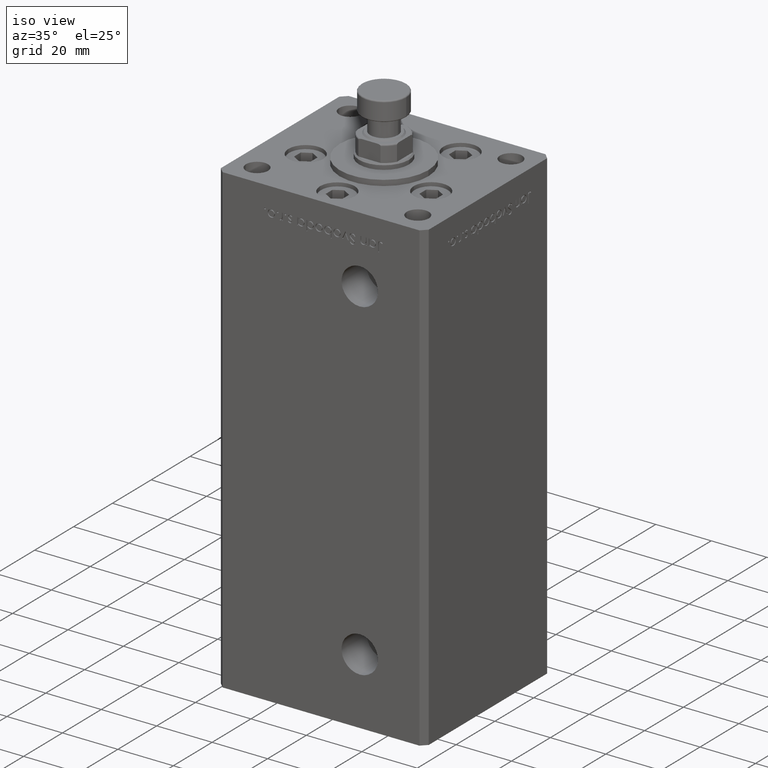
[diagram: clean part render]
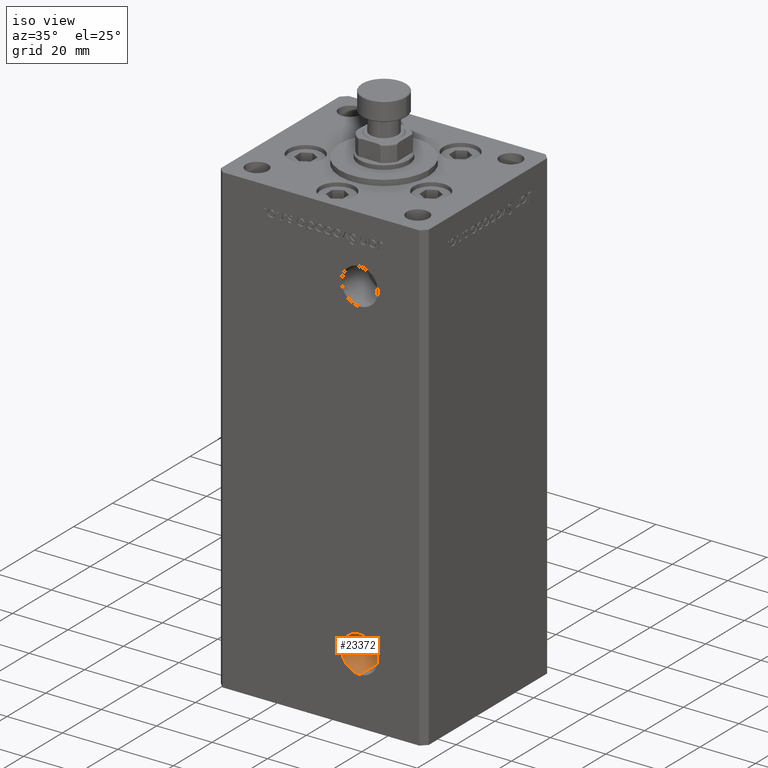
[diagram: same view with one face highlighted and labeled with its STEP entity id]
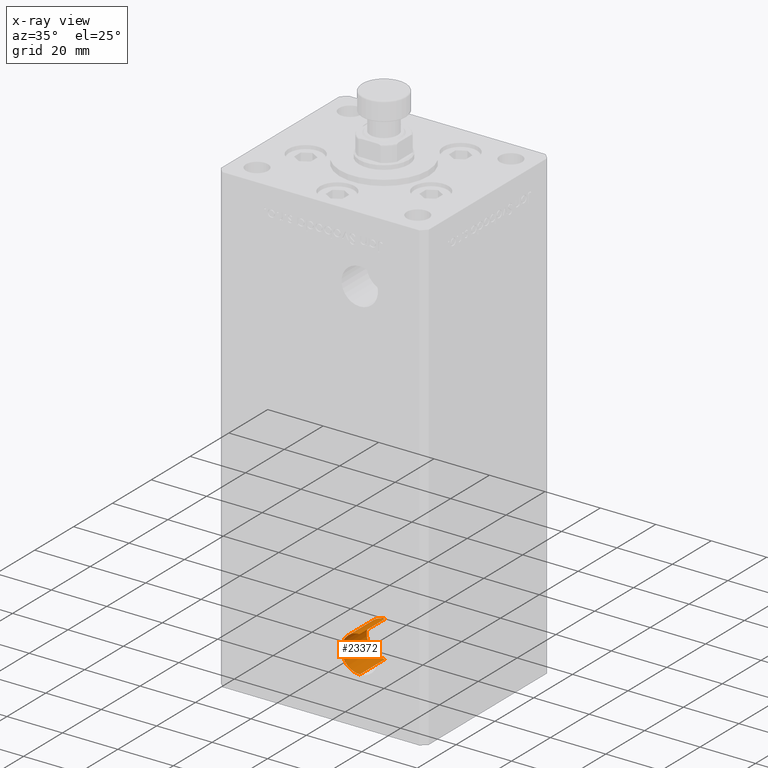
[diagram: x-ray of the same camera — body ghosted, the highlighted face saturated]
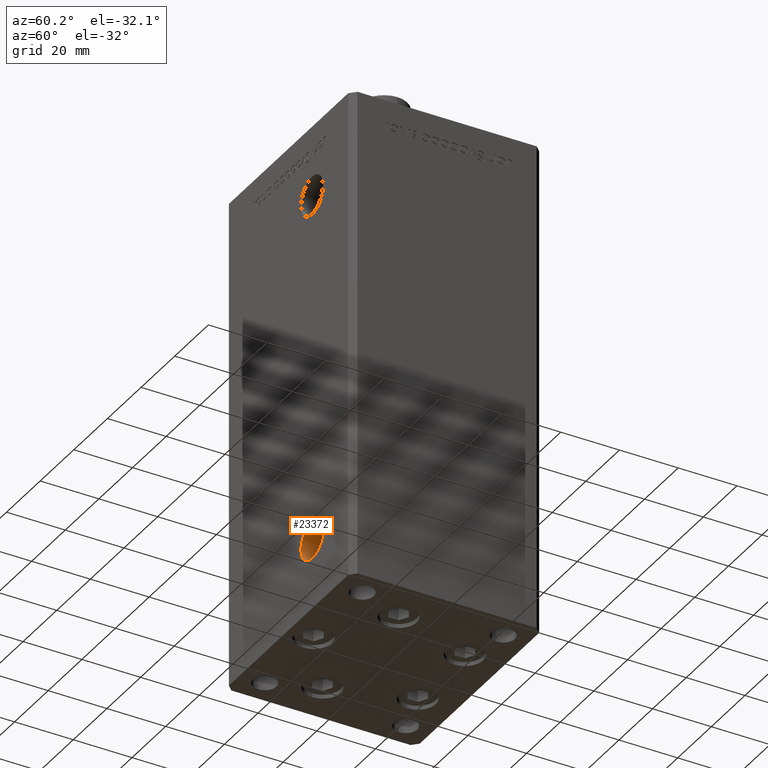
[diagram: same view with one face highlighted and labeled with its STEP entity id]
A machine part, iso view. The second image highlights one B-rep face of the part: STEP entity #23372.
The next image is the same camera in x-ray: the body ghosted, the highlighted face saturated — about 0% of this face is hidden behind the body in this view.
A second angle (auxiliary view) of the same face is appended — the face is thin or edge-on in the first view.
In plain terms, the highlighted cylindrical surface (edge-blend (fillet) strip) has radius 6.58 mm, axis along (-0, -1, -0).
Its self-contained STEP definition (entity closure, byte-faithful):
#447 = DIRECTION ( 'NONE',  ( -0.000000000000000000, -1.000000000000000000, -0.000000000000000000 ) ) ;
#818 = EDGE_CURVE ( 'NONE', #44646, #17870, #44342, .T. ) ;
#1305 = VECTOR ( 'NONE', #5479, 1000.000000000000000 ) ;
#2124 = DIRECTION ( 'NONE',  ( 0.000000000000000000, -1.000000000000000000, 0.000000000000000000 ) ) ;
#2968 = VERTEX_POINT ( 'NONE', #8262 ) ;
#5479 = DIRECTION ( 'NONE',  ( -0.000000000000000000, -1.000000000000000000, -0.000000000000000000 ) ) ;
#5680 = CARTESIAN_POINT ( 'NONE',  ( 13.99999999999999112, -32.50000000000000000, 9.000000000000007105 ) ) ;
#5899 = EDGE_CURVE ( 'NONE', #2968, #42101, #44497, .T. ) ;
#7691 = CARTESIAN_POINT ( 'NONE',  ( 13.99999999999999112, -19.50000000000000355, 2.420000000000009699 ) ) ;
#8262 = CARTESIAN_POINT ( 'NONE',  ( 13.99999999999999112, -19.50000000000000355, 15.58000000000000718 ) ) ;
#8695 = CYLINDRICAL_SURFACE ( 'NONE', #16544, 6.579999999999998295 ) ;
#14298 = CARTESIAN_POINT ( 'NONE',  ( 13.99999999999999112, -19.50000000000000355, 2.420000000000009699 ) ) ;
#14849 = ORIENTED_EDGE ( 'NONE', *, *, #818, .T. ) ;
#16544 = AXIS2_PLACEMENT_3D ( 'NONE', #28945, #447, #48703 ) ;
#17870 = VERTEX_POINT ( 'NONE', #24647 ) ;
#18560 = DIRECTION ( 'NONE',  ( -0.000000000000000000, -1.000000000000000000, -0.000000000000000000 ) ) ;
#19569 = ORIENTED_EDGE ( 'NONE', *, *, #5899, .F. ) ;
#21499 = AXIS2_PLACEMENT_3D ( 'NONE', #30892, #2124, #50905 ) ;
#23372 = ADVANCED_FACE ( 'NONE', ( #24687 ), #8695, .F. ) ;
#24647 = CARTESIAN_POINT ( 'NONE',  ( 13.99999999999999112, -32.50000000000000000, 2.420000000000009699 ) ) ;
#24687 = FACE_OUTER_BOUND ( 'NONE', #26796, .T. ) ;
#25694 = EDGE_CURVE ( 'NONE', #2968, #44646, #50802, .T. ) ;
#26796 = EDGE_LOOP ( 'NONE', ( #19569, #30742, #14849, #39794 ) ) ;
#28945 = CARTESIAN_POINT ( 'NONE',  ( 13.99999999999999112, -19.50000000000000355, 9.000000000000007105 ) ) ;
#30742 = ORIENTED_EDGE ( 'NONE', *, *, #25694, .T. ) ;
#30892 = CARTESIAN_POINT ( 'NONE',  ( 13.99999999999999112, -19.50000000000000355, 9.000000000000007105 ) ) ;
#34014 = LINE ( 'NONE', #14298, #48820 ) ;
#34088 = AXIS2_PLACEMENT_3D ( 'NONE', #5680, #38453, #41931 ) ;
#38453 = DIRECTION ( 'NONE',  ( 0.000000000000000000, -1.000000000000000000, 0.000000000000000000 ) ) ;
#39794 = ORIENTED_EDGE ( 'NONE', *, *, #50356, .F. ) ;
#41931 = DIRECTION ( 'NONE',  ( 0.000000000000000000, 0.000000000000000000, -1.000000000000000000 ) ) ;
#42101 = VERTEX_POINT ( 'NONE', #7691 ) ;
#44342 = CIRCLE ( 'NONE', #34088, 6.579999999999998295 ) ;
#44497 = CIRCLE ( 'NONE', #21499, 6.579999999999998295 ) ;
#44646 = VERTEX_POINT ( 'NONE', #44667 ) ;
#44667 = CARTESIAN_POINT ( 'NONE',  ( 13.99999999999999112, -32.50000000000000000, 15.58000000000000718 ) ) ;
#48703 = DIRECTION ( 'NONE',  ( 0.000000000000000000, 0.000000000000000000, -1.000000000000000000 ) ) ;
#48820 = VECTOR ( 'NONE', #18560, 1000.000000000000000 ) ;
#50255 = CARTESIAN_POINT ( 'NONE',  ( 13.99999999999999112, -19.50000000000000355, 15.58000000000000718 ) ) ;
#50356 = EDGE_CURVE ( 'NONE', #42101, #17870, #34014, .T. ) ;
#50802 = LINE ( 'NONE', #50255, #1305 ) ;
#50905 = DIRECTION ( 'NONE',  ( 0.000000000000000000, 0.000000000000000000, -1.000000000000000000 ) ) ;